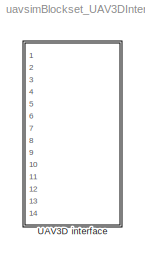
MODEL uavsimBlockset_UAV3DInterface
KIND library
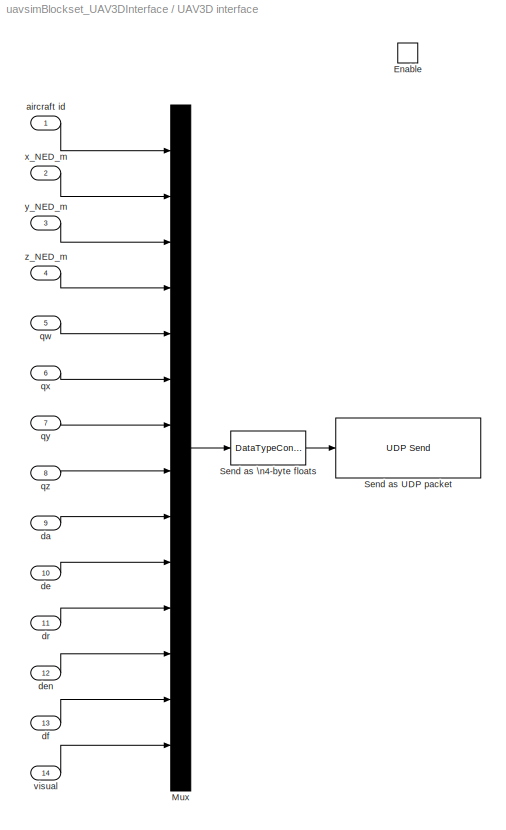
BLOCK [SubSystem] UAV3D interface
  Ports = [14, 0, 1]
  RequestExecContextInheritance = off
  SID = 1908
  Variant = off
BLOCK [EnablePort] UAV3D interface/Enable
  Ports = []
  SID = 4433
  StatesWhenEnabling = reset
BLOCK [Mux] UAV3D interface/Mux
  DisplayOption = bar
  Inputs = 14
  Ports = [14, 1]
  SID = 1915
BLOCK [Reference] UAV3D interface/Send as UDP packet  REF=dspnetwork/UDP Send
  Ports = [1]
  SID = 1914
  SourceBlock = dspnetwork/UDP Send
  SourceType = UDP Send
  localPort = -1
  localPortSource = Automatically determine
  localURL = '0.0.0.0'
  remotePort = udpport
  remoteURL = ip
  sampletime = -1
  separateLengthPort = 0
BLOCK [DataTypeConversion] UAV3D interface/Send as \n4-byte floats
  LockScale = on
  OutDataTypeStr = single
  RndMeth = Floor
  SID = 1911
BLOCK [Inport] UAV3D interface/aircraft id
  IconDisplay = Port number
  SID = 1928
BLOCK [Inport] UAV3D interface/da
  IconDisplay = Port number
  Port = 9
  SID = 4427
BLOCK [Inport] UAV3D interface/de
  IconDisplay = Port number
  Port = 10
  SID = 4428
BLOCK [Inport] UAV3D interface/den
  IconDisplay = Port number
  Port = 12
  SID = 4430
BLOCK [Inport] UAV3D interface/df
  IconDisplay = Port number
  Port = 13
  SID = 4431
BLOCK [Inport] UAV3D interface/dr
  IconDisplay = Port number
  Port = 11
  SID = 4429
BLOCK [Inport] UAV3D interface/qw
  IconDisplay = Port number
  Port = 5
  SID = 1918
BLOCK [Inport] UAV3D interface/qx
  IconDisplay = Port number
  Port = 6
  SID = 1919
BLOCK [Inport] UAV3D interface/qy
  IconDisplay = Port number
  Port = 7
  SID = 1920
BLOCK [Inport] UAV3D interface/qz
  IconDisplay = Port number
  Port = 8
  SID = 1929
BLOCK [Inport] UAV3D interface/visual
  IconDisplay = Port number
  Port = 14
  SID = 4432
BLOCK [Inport] UAV3D interface/x_NED_m
  IconDisplay = Port number
  Port = 2
  SID = 1909
BLOCK [Inport] UAV3D interface/y_NED_m
  IconDisplay = Port number
  Port = 3
  SID = 1916
BLOCK [Inport] UAV3D interface/z_NED_m
  IconDisplay = Port number
  Port = 4
  SID = 1917
LINE UAV3D interface/Mux:1 -> UAV3D interface/Send as \n4-byte floats:1
LINE UAV3D interface/Send as \n4-byte floats:1 -> UAV3D interface/Send as UDP packet:1
LINE UAV3D interface/aircraft id:1 -> UAV3D interface/Mux:1
LINE UAV3D interface/da:1 -> UAV3D interface/Mux:9
LINE UAV3D interface/de:1 -> UAV3D interface/Mux:10
LINE UAV3D interface/den:1 -> UAV3D interface/Mux:12
LINE UAV3D interface/df:1 -> UAV3D interface/Mux:13
LINE UAV3D interface/dr:1 -> UAV3D interface/Mux:11
LINE UAV3D interface/qw:1 -> UAV3D interface/Mux:5
LINE UAV3D interface/qx:1 -> UAV3D interface/Mux:6
LINE UAV3D interface/qy:1 -> UAV3D interface/Mux:7
LINE UAV3D interface/qz:1 -> UAV3D interface/Mux:8
LINE UAV3D interface/visual:1 -> UAV3D interface/Mux:14
LINE UAV3D interface/x_NED_m:1 -> UAV3D interface/Mux:2
LINE UAV3D interface/y_NED_m:1 -> UAV3D interface/Mux:3
LINE UAV3D interface/z_NED_m:1 -> UAV3D interface/Mux:4
